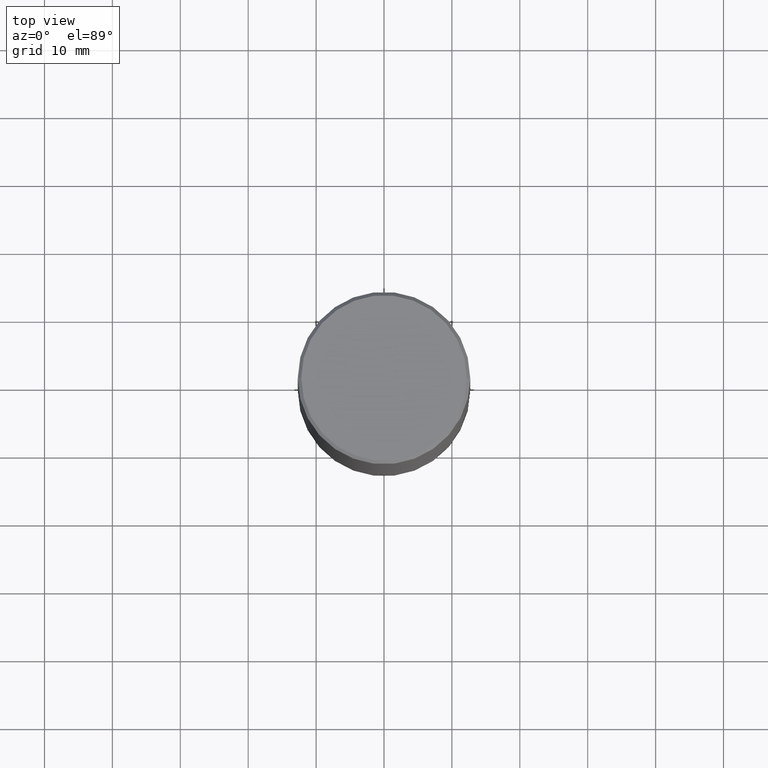
[diagram: clean part render]
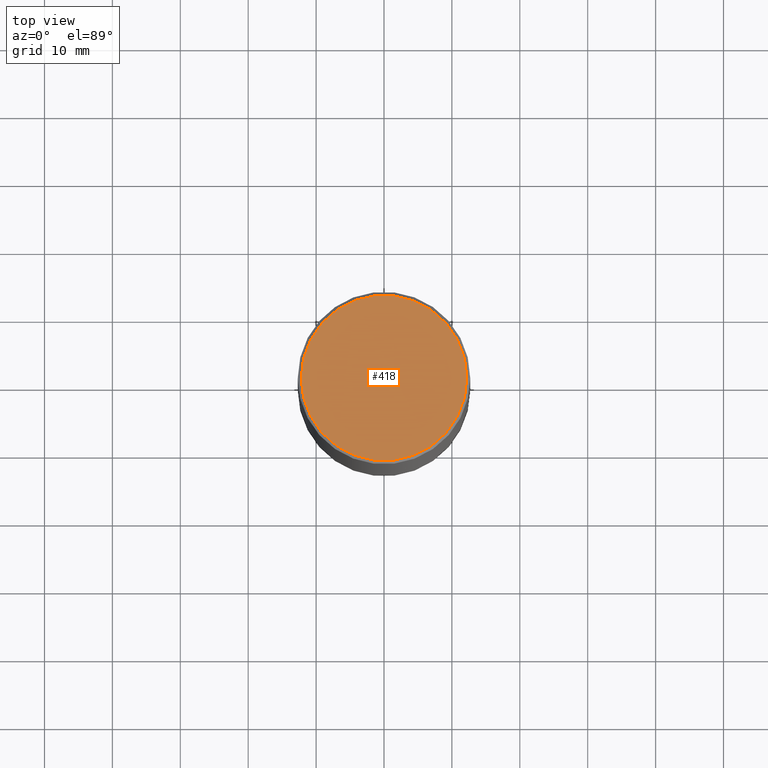
[diagram: same view with one face highlighted and labeled with its STEP entity id]
A machine part, top view. The second image highlights one B-rep face of the part: STEP entity #418.
In plain terms, the highlighted planar face has unit normal (0, -0, -1).
Its self-contained STEP definition (entity closure, byte-faithful):
#11 = DIRECTION ( 'NONE',  ( 2.438088387897960049E-29, -3.491481338843145188E-15, -1.000000000000000000 ) ) ;
#29 = DIRECTION ( 'NONE',  ( -2.445468806185136597E-29, 3.491481338843145583E-15, 1.000000000000000000 ) ) ;
#33 = DIRECTION ( 'NONE',  ( 1.000000000000000000, -6.982962677686266711E-15, 4.878011538933550964E-29 ) ) ;
#39 = EDGE_CURVE ( 'NONE', #246, #402, #274, .T. ) ;
#61 = DIRECTION ( 'NONE',  ( 1.000000000000000000, -6.982962677686266711E-15, 4.878011538933550964E-29 ) ) ;
#72 = AXIS2_PLACEMENT_3D ( 'NONE', #146, #11, #211 ) ;
#80 = CARTESIAN_POINT ( 'NONE',  ( -0.4799999999999999267, 3.386736898677839197E-15, 1.750090120940932860E-16 ) ) ;
#88 = CARTESIAN_POINT ( 'NONE',  ( -4.279790798774401163E-45, 6.110406998559833931E-31, 1.750090120941168532E-16 ) ) ;
#106 = DIRECTION ( 'NONE',  ( -2.445468806185136597E-29, 3.491481338843145583E-15, 1.000000000000000000 ) ) ;
#146 = CARTESIAN_POINT ( 'NONE',  ( 3.351822085289407153E-15, 0.4799999999999999267, -1.588406536597651338E-15 ) ) ;
#155 = EDGE_CURVE ( 'NONE', #402, #246, #387, .T. ) ;
#195 = AXIS2_PLACEMENT_3D ( 'NONE', #358, #106, #33 ) ;
#211 = DIRECTION ( 'NONE',  ( -1.000000000000000000, 6.982962677686265922E-15, -4.876176775795935793E-29 ) ) ;
#246 = VERTEX_POINT ( 'NONE', #333 ) ;
#274 = CIRCLE ( 'NONE', #378, 0.4799999999999999267 ) ;
#308 = PLANE ( 'NONE',  #72 ) ;
#314 = FACE_OUTER_BOUND ( 'NONE', #407, .T. ) ;
#315 = ORIENTED_EDGE ( 'NONE', *, *, #39, .T. ) ;
#333 = CARTESIAN_POINT ( 'NONE',  ( 0.4799999999999999267, -3.396558832296482099E-15, 1.750090120941404697E-16 ) ) ;
#358 = CARTESIAN_POINT ( 'NONE',  ( -4.279790798774401163E-45, 6.110406998559833931E-31, 1.750090120941168532E-16 ) ) ;
#378 = AXIS2_PLACEMENT_3D ( 'NONE', #88, #29, #61 ) ;
#387 = CIRCLE ( 'NONE', #195, 0.4799999999999999267 ) ;
#402 = VERTEX_POINT ( 'NONE', #80 ) ;
#407 = EDGE_LOOP ( 'NONE', ( #410, #315 ) ) ;
#410 = ORIENTED_EDGE ( 'NONE', *, *, #155, .T. ) ;
#418 = ADVANCED_FACE ( 'NONE', ( #314 ), #308, .F. ) ;